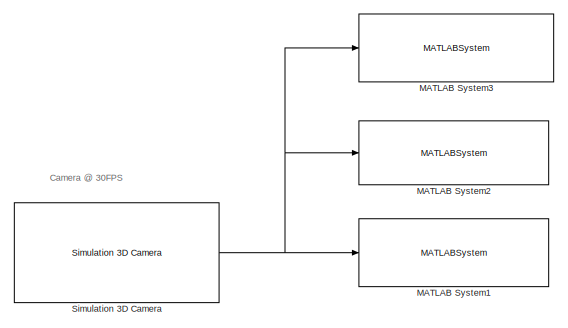
[diagram: root canvas - part 1/3, top right region]
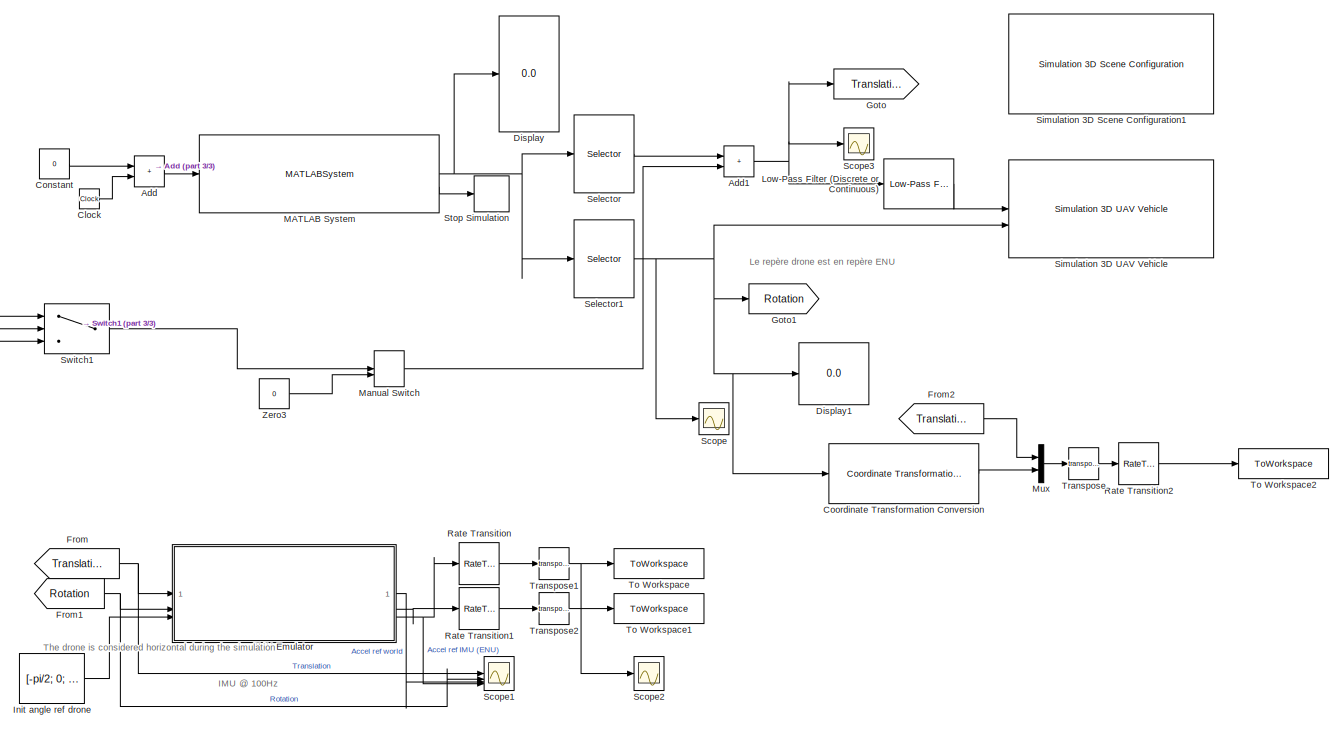
[diagram: root canvas - part 2/3, full width, middle band]
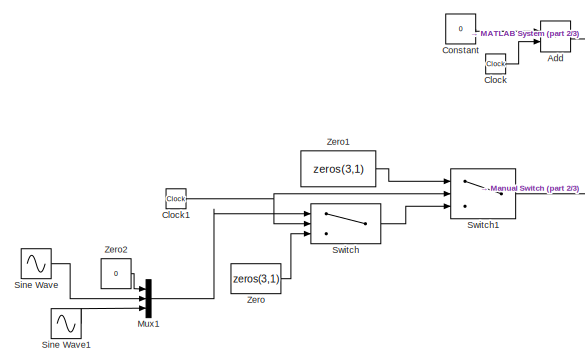
[diagram: root canvas - part 3/3, middle left region]
MODEL slx_cace1053b7b9
KIND model
CONFIG AbsTol = auto
CONFIG EnableMultiTasking = off
CONFIG FixedStep = auto
CONFIG MaxStep = auto
CONFIG MinStep = auto
CONFIG RelTol = 1e-3
CONFIG SampleTimeConstraint = Unconstrained
CONFIG SolverName = FixedStepAuto
CONFIG StartTime = 0.0
CONFIG StopTime = inf
BLOCK [Sum] Add
  IconShape = rectangular
BLOCK [Sum] Add1
  IconShape = rectangular
BLOCK [Clock] Clock
BLOCK [Clock] Clock1
BLOCK [Constant] Constant
  Value = 0
BLOCK [Reference] Coordinate Transformation Conversion  REF=robotcorelib/Coordinate Transformation Conversion
  LibrarySourceBlock = navlib/Utilities/Coordinate Transformation Conversion
  SourceBlock = robotcorelib/Coordinate Transformation Conversion
  SourceType = robotics.slcore.internal.block.CoordinateTransformationConversion
BLOCK [Display] Display
  Decimation = 1
BLOCK [Display] Display1
  Decimation = 1
BLOCK [From] From
  GotoTag = Translation
BLOCK [From] From1
  GotoTag = Rotation
BLOCK [From] From2
  GotoTag = Translation
BLOCK [Goto] Goto
  GotoTag = Translation
BLOCK [Goto] Goto1
  GotoTag = Rotation
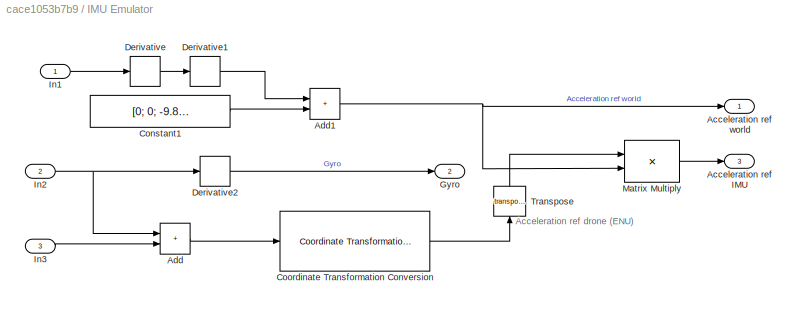
BLOCK [SubSystem] IMU Emulator
BLOCK [Outport] IMU Emulator/Acceleration ref IMU
  Port = 3
BLOCK [Outport] IMU Emulator/Acceleration ref world
BLOCK [Sum] IMU Emulator/Add
  IconShape = rectangular
BLOCK [Sum] IMU Emulator/Add1
  IconShape = rectangular
BLOCK [Constant] IMU Emulator/Constant1
  Value = [0; 0; -9.81]
BLOCK [Reference] IMU Emulator/Coordinate Transformation Conversion  REF=robotcorelib/Coordinate Transformation Conversion
  LibrarySourceBlock = navlib/Utilities/Coordinate Transformation Conversion
  SourceBlock = robotcorelib/Coordinate Transformation Conversion
  SourceType = robotics.slcore.internal.block.CoordinateTransformationConversion
BLOCK [Derivative] IMU Emulator/Derivative
BLOCK [Derivative] IMU Emulator/Derivative1
BLOCK [Derivative] IMU Emulator/Derivative2
BLOCK [Outport] IMU Emulator/Gyro
  Port = 2
BLOCK [Inport] IMU Emulator/In1
BLOCK [Inport] IMU Emulator/In2
  Port = 2
BLOCK [Inport] IMU Emulator/In3
  Port = 3
BLOCK [Product] IMU Emulator/Matrix Multiply
  Multiplication = Matrix(*)
BLOCK [Math] IMU Emulator/Transpose
  NameLocation = right
  Operator = transpose
BLOCK [Constant] Init angle ref drone
  Value = [-pi/2; 0; 0]
  VectorParams1D = off
BLOCK [Reference] Low-Pass Filter (Discrete or Continuous)  REF=eeGeneralControl/Low-Pass Filter
(Discrete or Continuous)
  LibrarySourceBlock = ee_sl_lib/General Control/Low-Pass Filter\n(Discrete or Continuous)
  SourceBlock = eeGeneralControl/Low-Pass Filter\n(Discrete or Continuous)
  SourceType = Low-Pass Filter (Discrete or Continuous)
BLOCK [MATLABSystem] MATLAB System
  MaskDisplay = disp('SmoothBasicWaypointManager');\nport_label('input',1,'time');\nport_label('output',1,'waypoint');\nport_label('output',2,'finished');
  MaskType = SmoothBasicWaypointManager
  ScenarioName = 8
  ScenariosDirectory = <userpath>\Documents\SEN5\CollaborativeSLAM\Scenarios
  SimulateUsing = Interpreted execution
  StepTime = 0.01
  System = SmoothBasicWaypointManager
BLOCK [MATLABSystem] MATLAB System1
  Commented = on
  MaskDisplay = disp('ScenarioRecorder');
  MaskType = ScenarioRecorder
  ScenarioFrameDir = <userpath>\Documents\SEN5\CollaborativeSLAM\Simulation\scenarios\4\images
  SimulateUsing = Interpreted execution
  System = ScenarioRecorder
BLOCK [MATLABSystem] MATLAB System2
  BufferSize = 20
  ImageSize = [ 720, 1280 ]
  MaskDisplay = disp('ScenarioBatchRecorder');\nport_label('input',1,'img');
  MaskType = ScenarioBatchRecorder
  ScenarioName = 8
  ScenariosDirectory = <userpath>\Documents\SEN5\CollaborativeSLAM\Scenarios
  SimulateUsing = Interpreted execution
  System = ScenarioBatchRecorder
BLOCK [MATLABSystem] MATLAB System3
  BufferSize = 10
  Commented = on
  ImageSize = [ 720, 1280 ]
  ScenarioFrameDir = <userpath>\Documents\SEN5\CollaborativeSLAM\v0\scenarios\4\images
  SimulateUsing = Interpreted execution
  System = AsyncScenarioBatchRecorder
BLOCK [ManualSwitch] Manual Switch
  CurrentSetting = 0
BLOCK [Mux] Mux
  DisplayOption = bar
  Inputs = 2
BLOCK [Mux] Mux1
  DisplayOption = bar
  Inputs = 3
BLOCK [RateTransition] Rate Transition
  OutPortSampleTime = 0.01
BLOCK [RateTransition] Rate Transition1
  OutPortSampleTime = 0.01
BLOCK [RateTransition] Rate Transition2
  OutPortSampleTime = 0.01
BLOCK [Scope] Scope
  Floating = off
  NumInputPorts = 1
  ScopeSpecificationString = Simulink.scopes.TimeScopeBlockCfg('CurrentConfiguration', extmgr.ConfigurationSet(extmgr.Configuration('Core','General UI',true),extmgr.Configuration('Core','Source UI',true),extmgr.Configuration('Sources','WiredSimulink',true),extmgr.Configuration('Visuals','Time Domain',true,'SerializedDisplays',{struct('MinYLimReal','-22.97466','MaxYLimReal','26.11469','YLabelReal','','MinYLimMag','0.00000','Ma...<+1483ch>
BLOCK [Scope] Scope1
  Floating = off
  NumInputPorts = 4
  ScopeSpecificationString = Simulink.scopes.TimeScopeBlockCfg('CurrentConfiguration', extmgr.ConfigurationSet(extmgr.Configuration('Core','General UI',true),extmgr.Configuration('Core','Source UI',true),extmgr.Configuration('Sources','WiredSimulink',true,'DataLoggingVariableName','ScopeData1'),extmgr.Configuration('Visuals','Time Domain',true,'SerializedDisplays',{struct('MinYLimReal','-11.875','MaxYLimReal','56.875','YLabel...<+4039ch>
BLOCK [Scope] Scope2
  Floating = off
  NumInputPorts = 4
  ScopeSpecificationString = Simulink.scopes.TimeScopeBlockCfg('CurrentConfiguration', extmgr.ConfigurationSet(extmgr.Configuration('Core','General UI',true),extmgr.Configuration('Core','Source UI',true),extmgr.Configuration('Sources','WiredSimulink',true,'DataLoggingVariableName','ScopeData2'),extmgr.Configuration('Visuals','Time Domain',true,'SerializedDisplays',{struct('MinYLimReal','-625.00000','MaxYLimReal','625.00000','...<+3903ch>
BLOCK [Scope] Scope3
  Floating = off
  NumInputPorts = 1
  ScopeSpecificationString = Simulink.scopes.TimeScopeBlockCfg('CurrentConfiguration', extmgr.ConfigurationSet(extmgr.Configuration('Core','General UI',true),extmgr.Configuration('Core','Source UI',true),extmgr.Configuration('Sources','WiredSimulink',true,'DataLoggingVariableName','ScopeData1'),extmgr.Configuration('Visuals','Time Domain',true,'SerializedDisplays',{struct('MinYLimReal','-3.125','MaxYLimReal','28.125','YLabelR...<+1849ch>
BLOCK [Selector] Selector
  IndexOptions = Index vector (dialog)
  Indices = [1 2 3]
  InputPortWidth = 6
  OutputSizes = 1
BLOCK [Selector] Selector1
  IndexOptions = Index vector (dialog)
  Indices = [4 5 6]
  InputPortWidth = 6
  OutputSizes = 1
BLOCK [Reference] Simulation 3D Camera  REF=sim3dcameralib/Simulation 3D Camera
  LibrarySourceBlock = drivingsim3d/Simulation 3D Camera
  Priority = 1
  SourceBlock = sim3dcameralib/Simulation 3D Camera
  SourceType = Simulation 3D Camera
BLOCK [Reference] Simulation 3D Scene Configuration1  REF=sim3dlib/Simulation 3D Scene Configuration
  LibrarySourceBlock = uavsim3dlib/Simulation 3D Scene Configuration
  Priority = 0
  SourceBlock = sim3dlib/Simulation 3D Scene Configuration
  SourceType = Simulation 3D Scene Configuration
BLOCK [Reference] Simulation 3D UAV Vehicle  REF=uavsim3dlib/Simulation 3D UAV Vehicle
  Priority = -1
  SourceBlock = uavsim3dlib/Simulation 3D UAV Vehicle
  SourceType = Simulation 3D UAV Vehicle
BLOCK [Sin] Sine Wave
  Frequency = 2*pi/3
  SampleTime = 0
BLOCK [Sin] Sine Wave1
  Frequency = 2*pi/3
  Phase = pi/2
  SampleTime = 0
BLOCK [Stop] Stop Simulation
BLOCK [Switch] Switch
  InputSameDT = off
  SaturateOnIntegerOverflow = off
  Threshold = 10
BLOCK [Switch] Switch1
  InputSameDT = off
  SaturateOnIntegerOverflow = off
  Threshold = 30
BLOCK [ToWorkspace] To Workspace
  FixptAsFi = on
  MaxDataPoints = inf
  SampleTime = -1
  SaveFormat = Timeseries
  VariableName = AccData
BLOCK [ToWorkspace] To Workspace1
  FixptAsFi = on
  MaxDataPoints = inf
  SampleTime = -1
  SaveFormat = Timeseries
  VariableName = GyroData
BLOCK [ToWorkspace] To Workspace2
  FixptAsFi = on
  MaxDataPoints = inf
  SampleTime = -1
  SaveFormat = Timeseries
  VariableName = gTruth
BLOCK [Math] Transpose
  Operator = transpose
BLOCK [Math] Transpose1
  Operator = transpose
BLOCK [Math] Transpose2
  Operator = transpose
BLOCK [Constant] Zero
  OutDataTypeStr = Inherit: Inherit via back propagation
  Value = zeros(3,1)
  VectorParams1D = off
BLOCK [Constant] Zero1
  OutDataTypeStr = Inherit: Inherit via back propagation
  Value = zeros(3,1)
BLOCK [Constant] Zero2
  OutDataTypeStr = Inherit: Inherit via back propagation
  Value = 0
BLOCK [Constant] Zero3
  OutDataTypeStr = Inherit: Inherit via back propagation
  Value = 0
ANNOTATION (root): The drone is considered horizontal during the simulation
ANNOTATION (root): Camera @ 30FPS
ANNOTATION (root): IMU @ 100Hz
ANNOTATION (root): Le repère drone est en repère ENU
ANNOTATION IMU Emulator: Acceleration ref drone (ENU)
NET Add1:1 -> Goto:1, Low-Pass Filter (Discrete or Continuous):1, Scope3:1
LINE Add:1 -> MATLAB System:1
NET Clock1:1 -> Switch1:2, Switch:2
LINE Clock:1 -> Add:2
LINE Constant:1 -> Add:1
LINE Coordinate Transformation Conversion:1 -> Mux:2
NET From1:1 -> IMU Emulator:2, Scope1:2
LINE From2:1 -> Mux:1
NET From:1 -> IMU Emulator:1, Scope1:1
NET IMU Emulator/Add1:1 -> IMU Emulator/Acceleration ref world:1, IMU Emulator/Matrix Multiply:2
LINE IMU Emulator/Add:1 -> IMU Emulator/Coordinate Transformation Conversion:1
LINE IMU Emulator/Constant1:1 -> IMU Emulator/Add1:2
LINE IMU Emulator/Coordinate Transformation Conversion:1 -> IMU Emulator/Transpose:1
LINE IMU Emulator/Derivative1:1 -> IMU Emulator/Add1:1
LINE IMU Emulator/Derivative2:1 -> IMU Emulator/Gyro:1
LINE IMU Emulator/Derivative:1 -> IMU Emulator/Derivative1:1
LINE IMU Emulator/In1:1 -> IMU Emulator/Derivative:1
NET IMU Emulator/In2:1 -> IMU Emulator/Add:1, IMU Emulator/Derivative2:1
LINE IMU Emulator/In3:1 -> IMU Emulator/Add:2
LINE IMU Emulator/Matrix Multiply:1 -> IMU Emulator/Acceleration ref IMU:1
LINE IMU Emulator/Transpose:1 -> IMU Emulator/Matrix Multiply:1
LINE IMU Emulator:1 -> Scope1:3
LINE IMU Emulator:2 -> Rate Transition1:1
NET IMU Emulator:3 -> Rate Transition:1, Scope1:4
LINE Init angle ref drone:1 -> IMU Emulator:3
LINE Low-Pass Filter (Discrete or Continuous):1 -> Simulation 3D UAV Vehicle:1
NET MATLAB System:1 -> Display:1, Selector1:1, Selector:1
LINE MATLAB System:2 -> Stop Simulation:1
LINE Manual Switch:1 -> Add1:2
LINE Mux1:1 -> Switch:1
LINE Mux:1 -> Transpose:1
LINE Rate Transition1:1 -> Transpose2:1
LINE Rate Transition2:1 -> To Workspace2:1
LINE Rate Transition:1 -> Transpose1:1
NET Selector1:1 -> Coordinate Transformation Conversion:1, Display1:1, Goto1:1, Scope:1, Simulation 3D UAV Vehicle:2
LINE Selector:1 -> Add1:1
NET Simulation 3D Camera:1 -> MATLAB System1:1, MATLAB System2:1, MATLAB System3:1
LINE Sine Wave1:1 -> Mux1:3
LINE Sine Wave:1 -> Mux1:2
LINE Switch1:1 -> Manual Switch:1
LINE Switch:1 -> Switch1:3
NET Transpose1:1 -> Scope2:1, To Workspace:1
LINE Transpose2:1 -> To Workspace1:1
LINE Transpose:1 -> Rate Transition2:1
LINE Zero1:1 -> Switch1:1
LINE Zero2:1 -> Mux1:1
LINE Zero3:1 -> Manual Switch:2
LINE Zero:1 -> Switch:3
note: NET lines group one-source signal fan-out (src -> all destinations, sorted); 1:1 wires keep LINE
